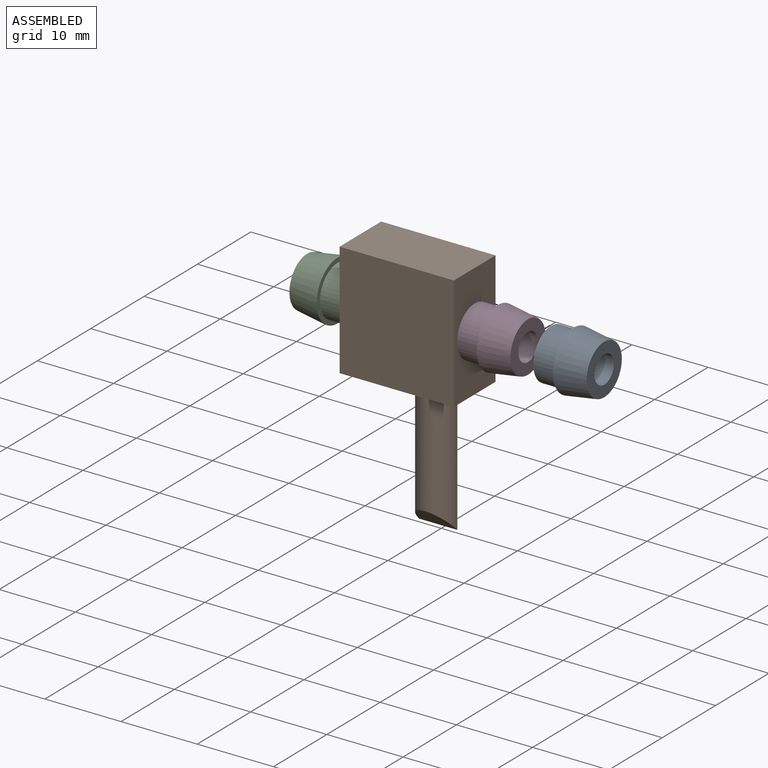
[diagram: assembled view]
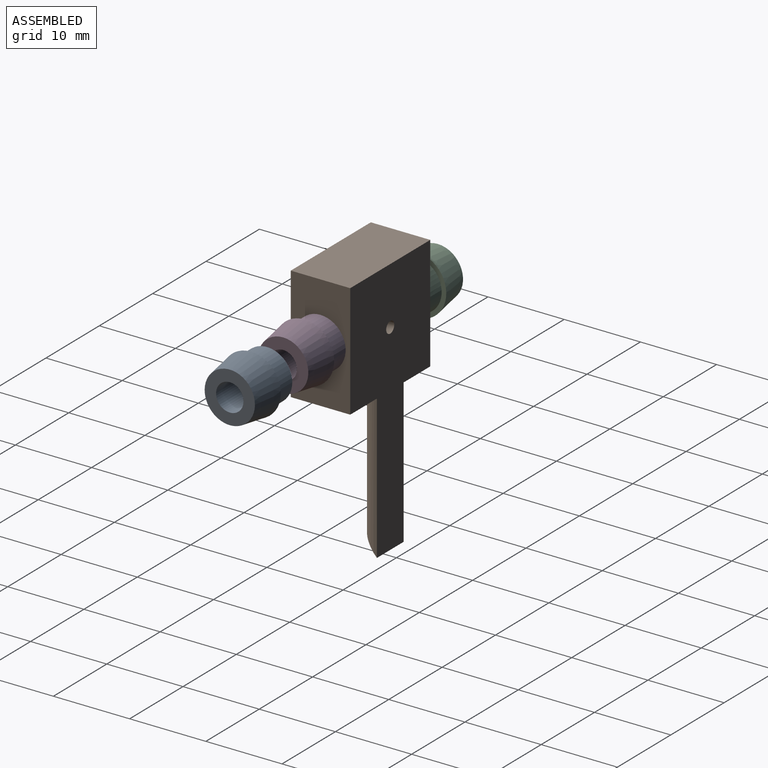
[diagram: assembled view, second angle]
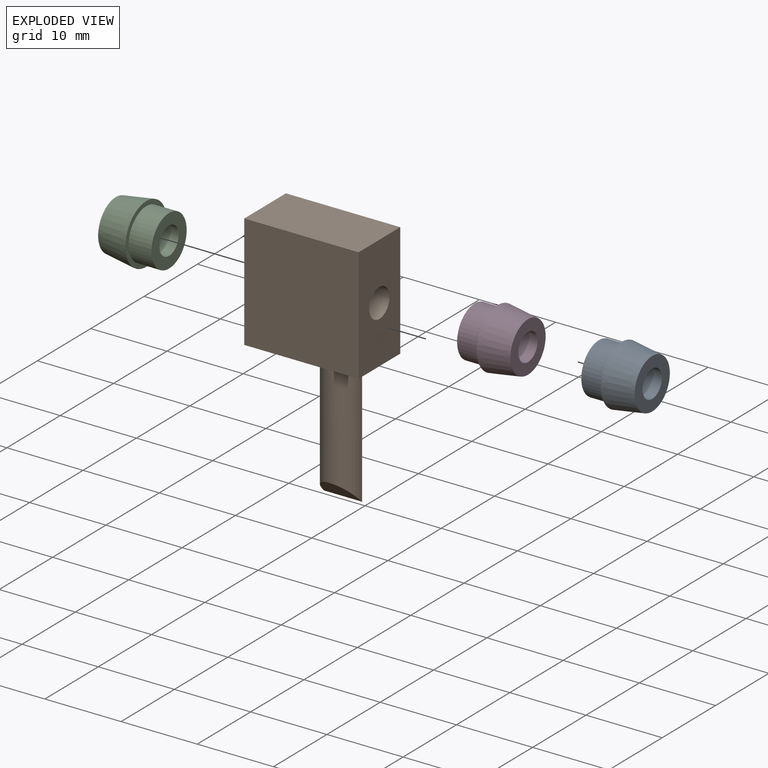
[diagram: exploded view]
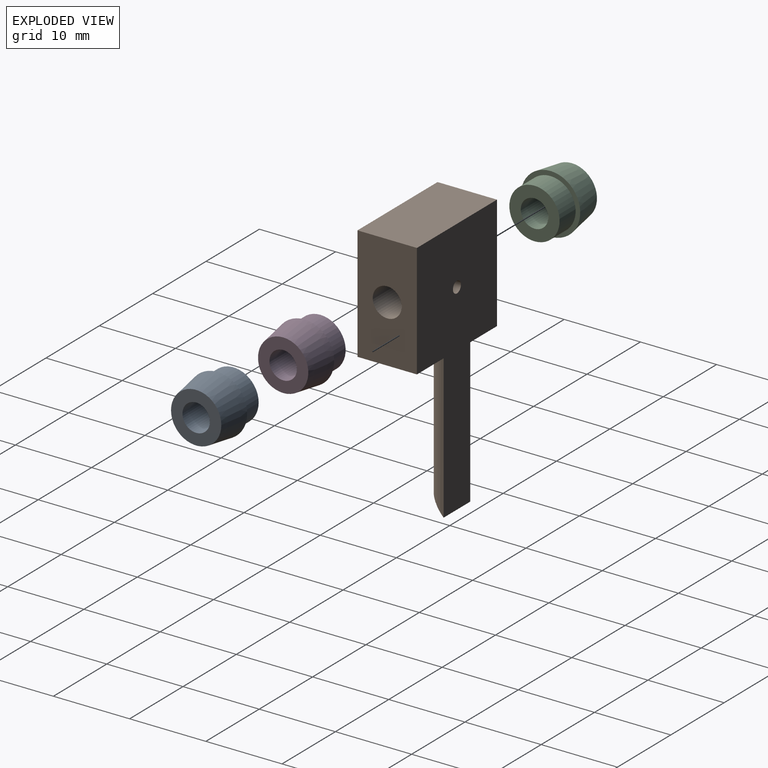
[diagram: exploded view, second angle]
ASSEMBLY  parts=3 mates=2
PART A: 10 faces, bbox 33.9x7.8x15 mm
  f0: plane 15x15mm, normal (0,-1,0), area 225mm2, adj f1,f3,f4,f5
  f1: plane 15x7.8mm, normal (1,0,0), area 117mm2, adj f0,f2,f4,f5
  f2: plane 33.9x15mm, normal (0,1,0), area 317.7mm2, adj f1,f3,f4,f5,f7,f8,f9
  f3: plane 15x7.8mm, normal (-1,0,0), area 107.2mm2, adj f0,f2,f4,f5,f8
  f4: plane 15x7.8mm, normal (0,0,1), area 105.7mm2, adj f0,f1,f2,f3,f6
  f5: plane 15x7.8mm, normal (0,0,-1), area 105.7mm2, adj f0,f1,f2,f3,f6
  f6: cylinder r=1.9mm len=15mm, axis (0,0,1), area 177.3mm2, adj f4,f5,f7
  f7: cylinder r=0.75mm len=2.15mm, axis (0,1,0), area 9.8mm2, adj f2,f6
  f8: cylinder r=2.5mm len=18.9mm, axis (1,0,0), area 135.9mm2, adj f2,f3,f9
  f9: plane 5x2.5mm, normal (-0.71,-0.71,0), area 13.9mm2, adj f2,f8
PART B: 6 faces, bbox 7.8x7x7.8 mm
  f0: plane 6.6x6.6mm, normal (0,-1,0), area 24mm2, adj f4,f5
  f1: plane 6.6x6.6mm, normal (0,1,0), area 24mm2, adj f2,f5
  f2: cone r=3.9mm half-angle=8.5deg, axis (0,-1,0), area 91.5mm2, adj f1,f3
  f3: plane 7.8x7.8mm, normal (0,-1,0), area 13.6mm2, adj f2,f4
  f4: cylinder r=3.3mm len=6.6mm, axis (0,1,0), area 62.2mm2, adj f0,f3
  f5: cylinder r=1.8mm len=7mm, axis (0,1,0), area 79.2mm2, adj f0,f1
PART C: same geometry as B
PLACE A rot(axis=(0,-1,0),90deg) t=(27.63,5.38,0)mm
PLACE B rot(axis=(0,0,1),90deg) t=(12.63,5.38,0)mm
PLACE C rot(axis=(0,0,-1),90deg) t=(27.63,5.38,0)mm
MATE fastened B.f5 <-> A.f6  axis (-1,0,0) through (12.63,5.38,0)mm
MATE fastened C.f2 <-> A.f6  axis (-1,0,0) through (27.63,5.38,0)mm
